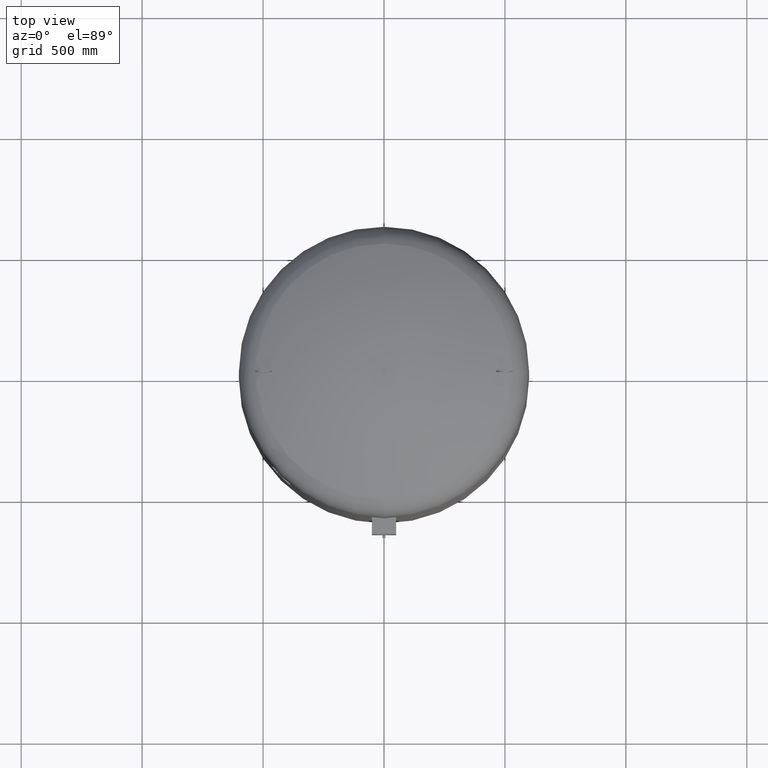
[diagram: clean part render]
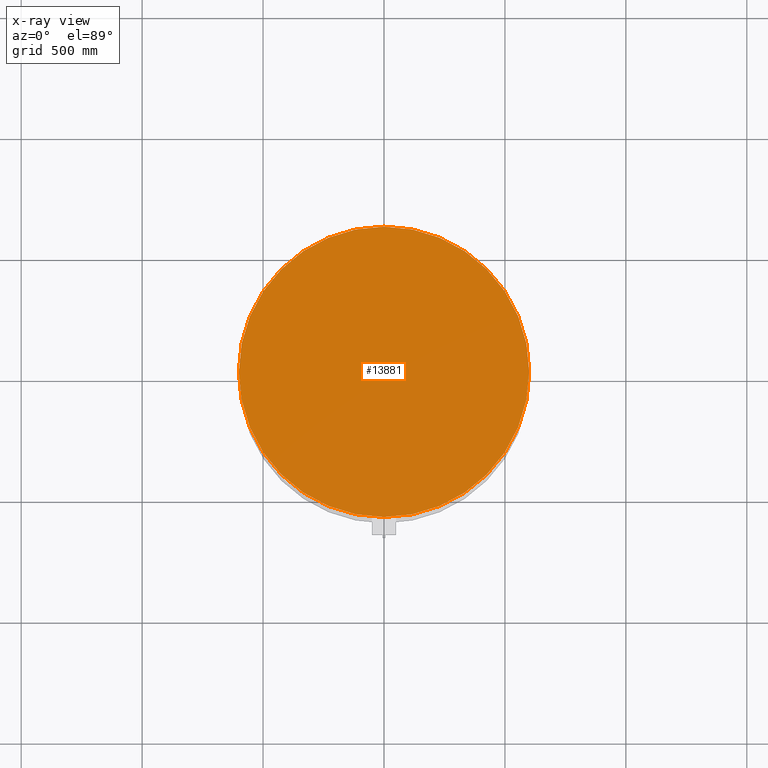
[diagram: x-ray — body ghosted, one internal face saturated and labeled with its STEP entity id]
A machine part, top view, then the same camera in x-ray: the body is ghosted and one INTERNAL B-rep face — a face not visible from any outside direction — is saturated and labeled: STEP entity #13881.
In plain terms, the highlighted planar face has unit normal (0, 0, -1).
Its self-contained STEP definition (entity closure, byte-faithful):
#13212=CARTESIAN_POINT('',(600.000000000000110,-4.684274E-014,2184.0));
#13213=VERTEX_POINT('',#13212);
#13222=CARTESIAN_POINT('',(-599.999999999999890,2.663364E-014,2184.0));
#13223=VERTEX_POINT('',#13222);
#13224=CARTESIAN_POINT('',(7.134050E-015,-4.684274E-014,2184.0));
#13225=DIRECTION('',(0.0,0.0,-1.0));
#13226=DIRECTION('',(1.0,0.0,0.0));
#13227=AXIS2_PLACEMENT_3D('',#13224,#13225,#13226);
#13228=CIRCLE('',#13227,600.0);
#13229=EDGE_CURVE('',#13223,#13213,#13228,.T.);
#13862=CARTESIAN_POINT('',(7.134050E-015,-4.684274E-014,2184.0));
#13863=DIRECTION('',(0.0,0.0,-1.0));
#13864=DIRECTION('',(1.0,0.0,0.0));
#13865=AXIS2_PLACEMENT_3D('',#13862,#13863,#13864);
#13866=CIRCLE('',#13865,600.0);
#13867=EDGE_CURVE('',#13213,#13223,#13866,.T.);
#13872=CARTESIAN_POINT('',(300.0,-4.684274E-014,2184.0));
#13873=DIRECTION('',(0.0,0.0,-1.0));
#13874=DIRECTION('',(0.0,-1.0,0.0));
#13875=AXIS2_PLACEMENT_3D('',#13872,#13873,#13874);
#13876=PLANE('',#13875);
#13877=ORIENTED_EDGE('',*,*,#13867,.T.);
#13878=ORIENTED_EDGE('',*,*,#13229,.T.);
#13879=EDGE_LOOP('',(#13877,#13878));
#13880=FACE_OUTER_BOUND('',#13879,.T.);
#13881=ADVANCED_FACE('',(#13880),#13876,.T.);